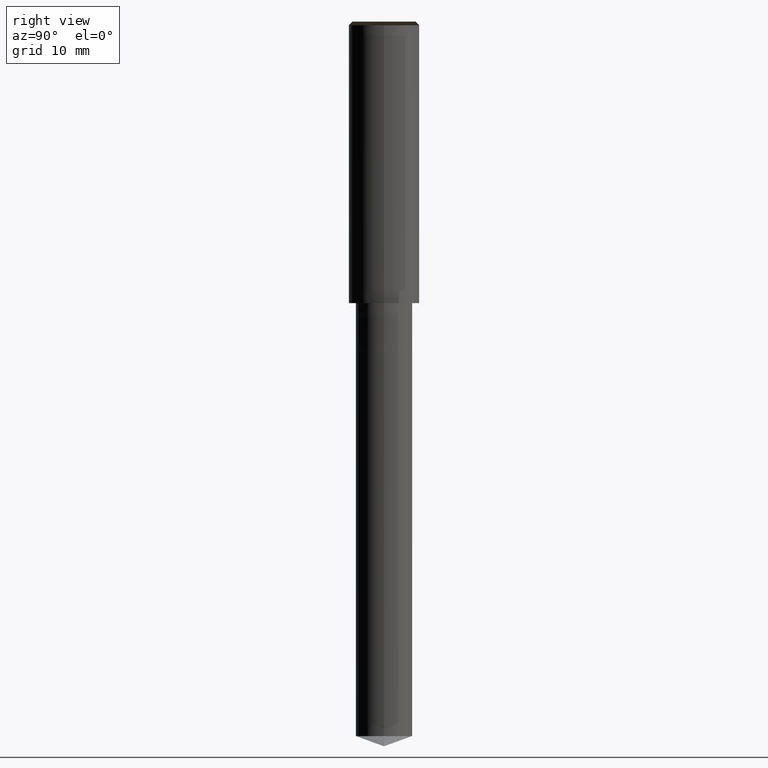
[diagram: clean part render]
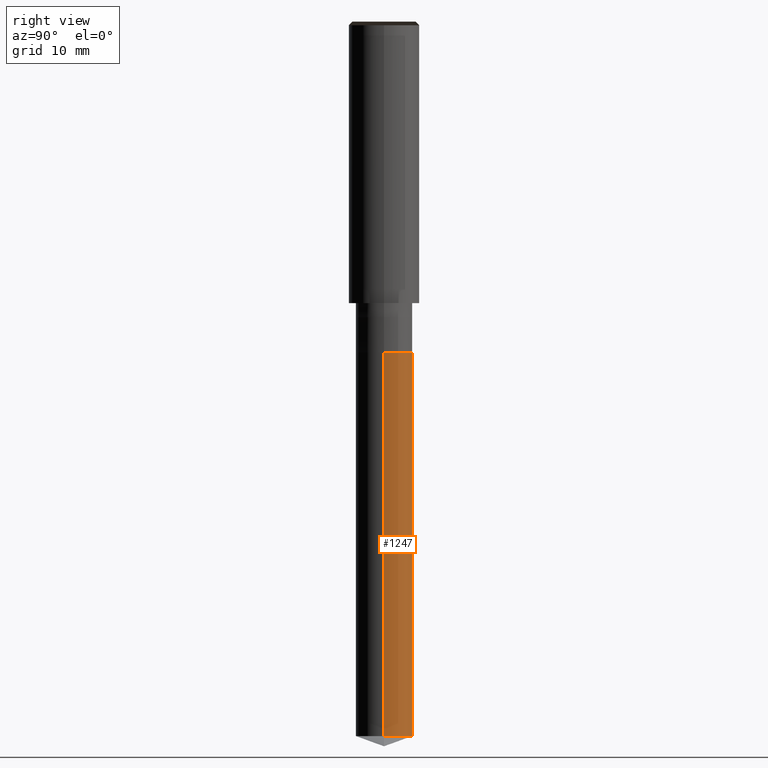
[diagram: same view with one face highlighted and labeled with its STEP entity id]
A machine part, right view. The second image highlights one B-rep face of the part: STEP entity #1247.
In plain terms, the highlighted face is a freeform B-spline surface patch.
Its self-contained STEP definition (entity closure, byte-faithful):
#1149=CARTESIAN_POINT('',(4.0,0.0,-61.544119062935));
#1150=CARTESIAN_POINT('',(4.0,4.0,-61.544119062935));
#1151=CARTESIAN_POINT('',(0.0,4.0,-61.544119062935));
#1152=CARTESIAN_POINT('',(-4.0,4.0,-61.544119062935));
#1153=CARTESIAN_POINT('',(-4.0,0.0,-61.544119062935));
#1154=CARTESIAN_POINT('',(4.0,0.0,-7.0));
#1155=CARTESIAN_POINT('',(4.0,4.0,-7.0));
#1156=CARTESIAN_POINT('',(0.0,4.0,-7.0));
#1157=CARTESIAN_POINT('',(-4.0,4.0,-7.0));
#1158=CARTESIAN_POINT('',(-4.0,0.0,-7.0));
#1228=(
BOUNDED_SURFACE()
B_SPLINE_SURFACE(1,2,(
(#1149,#1150,#1151,#1152,#1153),
(#1154,#1155,#1156,#1157,#1158)
), .UNSPECIFIED.,.F.,.F.,.F.)
B_SPLINE_SURFACE_WITH_KNOTS((2,2),(3,2,3),(
0.0,1.0),(
0.0,0.5,1.0), .UNSPECIFIED.)
GEOMETRIC_REPRESENTATION_ITEM()
RATIONAL_B_SPLINE_SURFACE(((1.0,0.707106781187,1.0,0.707106781187,1.0),
(1.0,0.707106781187,1.0,0.707106781187,1.0)
))
REPRESENTATION_ITEM('')
SURFACE()
);
#1229=(
BOUNDED_CURVE()
B_SPLINE_CURVE(2,(#1153,#1152,#1151,#1150,#1149),.UNSPECIFIED.,.F.,.F.)
B_SPLINE_CURVE_WITH_KNOTS((3,2,3),
(0.0,0.5,1.0),.UNSPECIFIED.)
CURVE()
GEOMETRIC_REPRESENTATION_ITEM()
RATIONAL_B_SPLINE_CURVE((1.0,0.707106781187,1.0,0.707106781187,1.0))
REPRESENTATION_ITEM('')
);
#1230=(
BOUNDED_CURVE()
B_SPLINE_CURVE(1,(#1149,#1154),.UNSPECIFIED.,.F.,.F.)
B_SPLINE_CURVE_WITH_KNOTS((2,2),
(0.0,1.0),.UNSPECIFIED.)
CURVE()
GEOMETRIC_REPRESENTATION_ITEM()
RATIONAL_B_SPLINE_CURVE((1.0,1.0))
REPRESENTATION_ITEM('')
);
#1231=(
BOUNDED_CURVE()
B_SPLINE_CURVE(2,(#1154,#1155,#1156,#1157,#1158),.UNSPECIFIED.,.F.,.F.)
B_SPLINE_CURVE_WITH_KNOTS((3,2,3),
(0.0,0.5,1.0),.UNSPECIFIED.)
CURVE()
GEOMETRIC_REPRESENTATION_ITEM()
RATIONAL_B_SPLINE_CURVE((1.0,0.707106781187,1.0,0.707106781187,1.0))
REPRESENTATION_ITEM('')
);
#1232=(
BOUNDED_CURVE()
B_SPLINE_CURVE(1,(#1158,#1153),.UNSPECIFIED.,.F.,.F.)
B_SPLINE_CURVE_WITH_KNOTS((2,2),
(0.0,1.0),.UNSPECIFIED.)
CURVE()
GEOMETRIC_REPRESENTATION_ITEM()
RATIONAL_B_SPLINE_CURVE((1.0,1.0))
REPRESENTATION_ITEM('')
);
#1233=VERTEX_POINT('',#1149);
#1234=VERTEX_POINT('',#1153);
#1235=VERTEX_POINT('',#1154);
#1236=VERTEX_POINT('',#1158);
#1237=EDGE_CURVE('',#1234,#1233,#1229,.T.);
#1238=EDGE_CURVE('',#1233,#1235,#1230,.T.);
#1239=EDGE_CURVE('',#1235,#1236,#1231,.T.);
#1240=EDGE_CURVE('',#1236,#1234,#1232,.T.);
#1241=ORIENTED_EDGE('',*,*,#1237,.T.);
#1242=ORIENTED_EDGE('',*,*,#1238,.T.);
#1243=ORIENTED_EDGE('',*,*,#1239,.T.);
#1244=ORIENTED_EDGE('',*,*,#1240,.T.);
#1245=EDGE_LOOP('',(#1241,#1242,#1243,#1244));
#1246=FACE_OUTER_BOUND('',#1245,.T.);
#1247=ADVANCED_FACE('',(#1246),#1228,.T.);